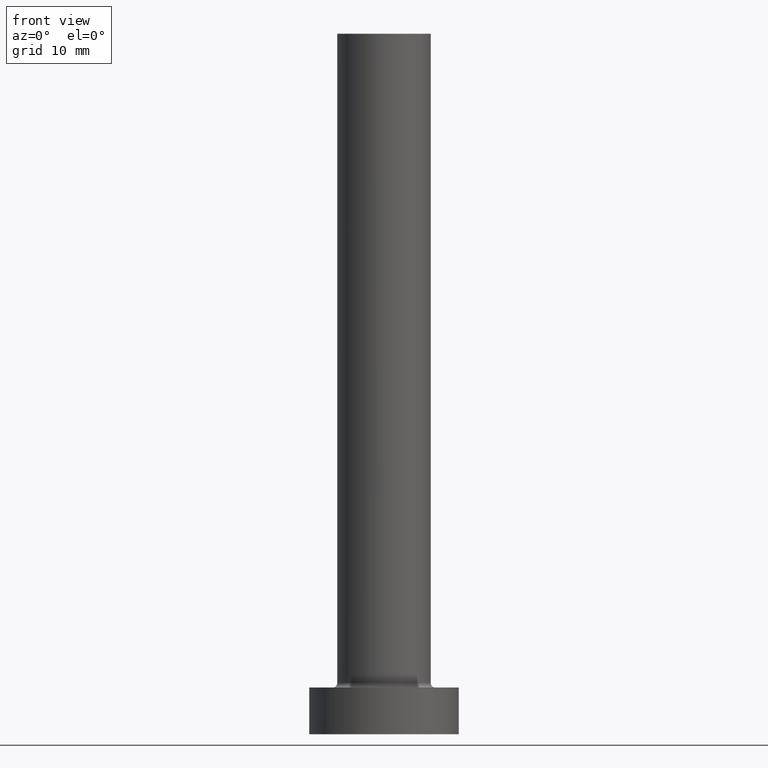
[diagram: clean part render]
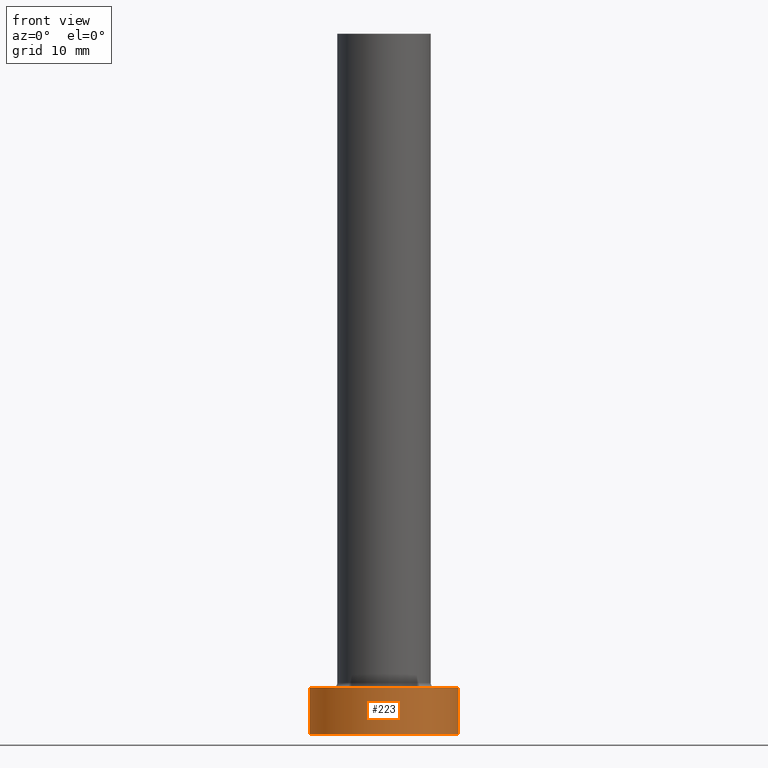
[diagram: same view with one face highlighted and labeled with its STEP entity id]
A machine part, front view. The second image highlights one B-rep face of the part: STEP entity #223.
In plain terms, the highlighted cylindrical surface (partial cylindrical patch) has radius 8 mm, axis along (-0, -0, -1).
Its self-contained STEP definition (entity closure, byte-faithful):
#2 = DIRECTION ( 'NONE',  ( -1.000000000000000000, 0.000000000000000000, 0.000000000000000000 ) ) ;
#3 = VERTEX_POINT ( 'NONE', #434 ) ;
#18 = VERTEX_POINT ( 'NONE', #426 ) ;
#20 = CIRCLE ( 'NONE', #171, 8.000000000000000000 ) ;
#45 = ORIENTED_EDGE ( 'NONE', *, *, #324, .T. ) ;
#49 = DIRECTION ( 'NONE',  ( 0.000000000000000000, 0.000000000000000000, 1.000000000000000000 ) ) ;
#55 = DIRECTION ( 'NONE',  ( -0.000000000000000000, -0.000000000000000000, -1.000000000000000000 ) ) ;
#66 = LINE ( 'NONE', #340, #372 ) ;
#69 = CARTESIAN_POINT ( 'NONE',  ( 8.000000000000000000, 9.797174393178825657E-16, 5.000000000000000000 ) ) ;
#98 = AXIS2_PLACEMENT_3D ( 'NONE', #209, #320, #2 ) ;
#106 = EDGE_CURVE ( 'NONE', #309, #3, #367, .T. ) ;
#112 = CIRCLE ( 'NONE', #344, 8.000000000000000000 ) ;
#113 = DIRECTION ( 'NONE',  ( 0.000000000000000000, 0.000000000000000000, 1.000000000000000000 ) ) ;
#128 = ORIENTED_EDGE ( 'NONE', *, *, #227, .F. ) ;
#133 = CARTESIAN_POINT ( 'NONE',  ( -8.000000000000000000, 0.000000000000000000, 5.000000000000000000 ) ) ;
#147 = CARTESIAN_POINT ( 'NONE',  ( 0.000000000000000000, 0.000000000000000000, 0.000000000000000000 ) ) ;
#156 = EDGE_CURVE ( 'NONE', #161, #18, #66, .T. ) ;
#161 = VERTEX_POINT ( 'NONE', #69 ) ;
#171 = AXIS2_PLACEMENT_3D ( 'NONE', #147, #113, #241 ) ;
#209 = CARTESIAN_POINT ( 'NONE',  ( 0.000000000000000000, 0.000000000000000000, 5.000000000000000000 ) ) ;
#217 = CARTESIAN_POINT ( 'NONE',  ( -8.000000000000000000, 0.000000000000000000, 5.000000000000000000 ) ) ;
#223 = ADVANCED_FACE ( 'NONE', ( #325 ), #322, .T. ) ;
#227 = EDGE_CURVE ( 'NONE', #309, #161, #112, .T. ) ;
#241 = DIRECTION ( 'NONE',  ( 1.000000000000000000, 0.000000000000000000, 0.000000000000000000 ) ) ;
#243 = ORIENTED_EDGE ( 'NONE', *, *, #156, .F. ) ;
#253 = CARTESIAN_POINT ( 'NONE',  ( 0.000000000000000000, 0.000000000000000000, 5.000000000000000000 ) ) ;
#307 = VECTOR ( 'NONE', #55, 1000.000000000000000 ) ;
#309 = VERTEX_POINT ( 'NONE', #217 ) ;
#320 = DIRECTION ( 'NONE',  ( -0.000000000000000000, -0.000000000000000000, -1.000000000000000000 ) ) ;
#322 = CYLINDRICAL_SURFACE ( 'NONE', #98, 8.000000000000000000 ) ;
#324 = EDGE_CURVE ( 'NONE', #3, #18, #20, .T. ) ;
#325 = FACE_OUTER_BOUND ( 'NONE', #413, .T. ) ;
#340 = CARTESIAN_POINT ( 'NONE',  ( 8.000000000000000000, 9.797174393178825657E-16, 5.000000000000000000 ) ) ;
#344 = AXIS2_PLACEMENT_3D ( 'NONE', #253, #49, #432 ) ;
#367 = LINE ( 'NONE', #133, #307 ) ;
#372 = VECTOR ( 'NONE', #374, 1000.000000000000000 ) ;
#374 = DIRECTION ( 'NONE',  ( -0.000000000000000000, -0.000000000000000000, -1.000000000000000000 ) ) ;
#413 = EDGE_LOOP ( 'NONE', ( #243, #128, #459, #45 ) ) ;
#426 = CARTESIAN_POINT ( 'NONE',  ( 8.000000000000000000, 9.797174393178825657E-16, 0.000000000000000000 ) ) ;
#432 = DIRECTION ( 'NONE',  ( 1.000000000000000000, 0.000000000000000000, 0.000000000000000000 ) ) ;
#434 = CARTESIAN_POINT ( 'NONE',  ( -8.000000000000000000, 0.000000000000000000, 0.000000000000000000 ) ) ;
#459 = ORIENTED_EDGE ( 'NONE', *, *, #106, .T. ) ;